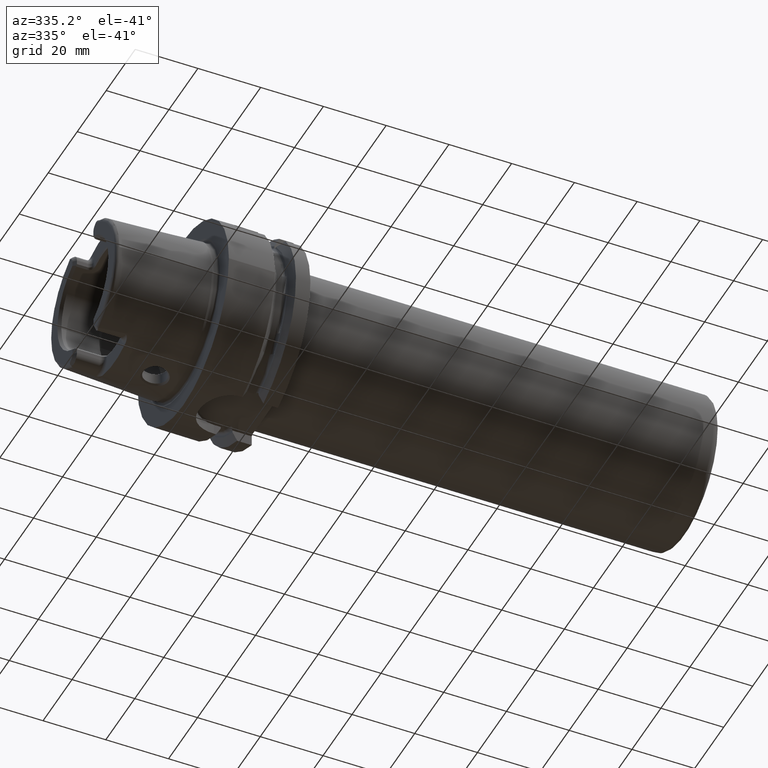
[diagram: clean part render]
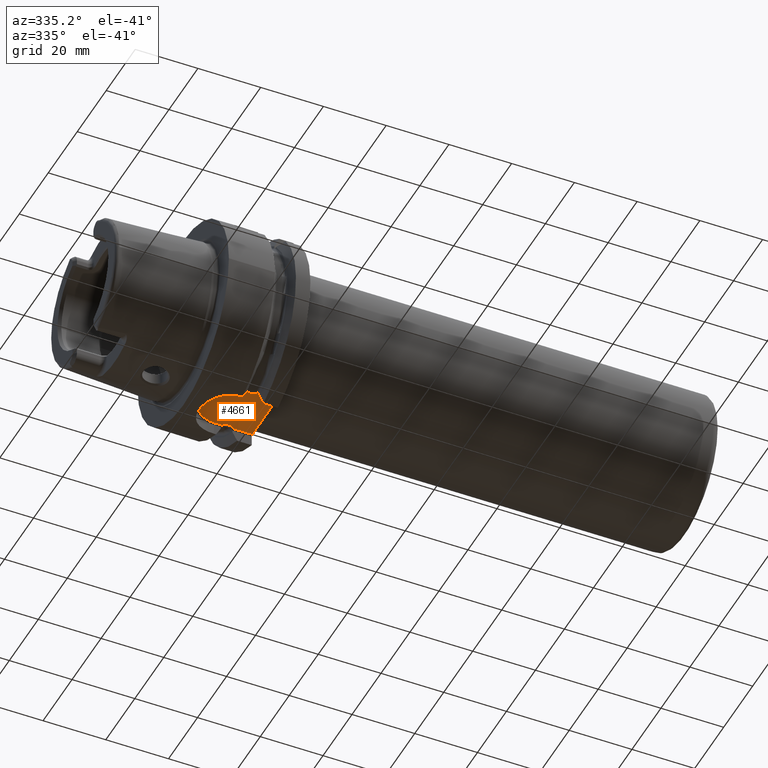
[diagram: same view with one face highlighted and labeled with its STEP entity id]
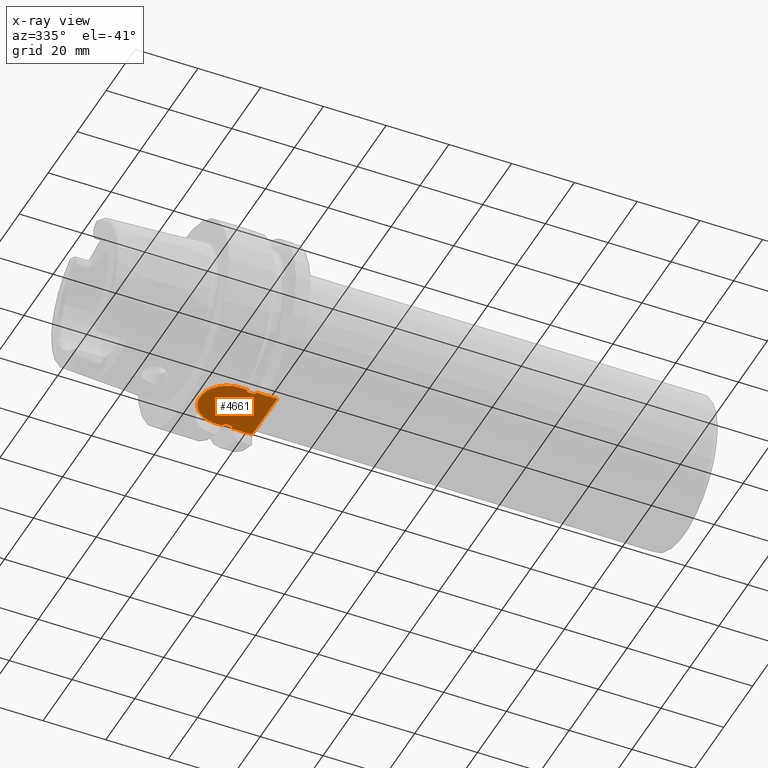
[diagram: x-ray of the same camera — body ghosted, the highlighted face saturated]
A machine part, auxiliary view. The second image highlights one B-rep face of the part: STEP entity #4661.
The next image is the same camera in x-ray: the body ghosted, the highlighted face saturated — about 0% of this face is hidden behind the body in this view.
In plain terms, the highlighted planar face has unit normal (0, 0, -1).
Its self-contained STEP definition (entity closure, byte-faithful):
#1222=CARTESIAN_POINT('',(1.7125E1,7.7E0,-2.64E1));
#1223=CARTESIAN_POINT('',(1.709612257646E1,7.7E0,-2.64E1));
#1224=CARTESIAN_POINT('',(1.703809054195E1,7.708549788548E0,-2.64E1));
#1225=CARTESIAN_POINT('',(1.694576354836E1,7.752741855764E0,-2.64E1));
#1226=CARTESIAN_POINT('',(1.686145167985E1,7.821144618954E0,-2.64E1));
#1227=CARTESIAN_POINT('',(1.678169591401E1,7.910255407197E0,-2.64E1));
#1228=CARTESIAN_POINT('',(1.670585865658E1,8.018731508895E0,-2.64E1));
#1229=CARTESIAN_POINT('',(1.663386002384E1,8.144595739092E0,-2.64E1));
#1230=CARTESIAN_POINT('',(1.656565613315E1,8.286316729889E0,-2.64E1));
#1231=CARTESIAN_POINT('',(1.650080228847E1,8.443935370899E0,-2.64E1));
#1232=CARTESIAN_POINT('',(1.646027482334E1,8.558057187343E0,-2.64E1));
#1233=CARTESIAN_POINT('',(1.644062313526E1,8.6175E0,-2.64E1));
#1296=CARTESIAN_POINT('',(1.644062313526E1,-8.6175E0,-2.64E1));
#1297=CARTESIAN_POINT('',(1.646078603879E1,-8.556510852770E0,-2.64E1));
#1298=CARTESIAN_POINT('',(1.650227386064E1,-8.439948273349E0,-2.64E1));
#1299=CARTESIAN_POINT('',(1.656805348335E1,-8.280864278287E0,-2.64E1));
#1300=CARTESIAN_POINT('',(1.663684500818E1,-8.138886080904E0,-2.64E1));
#1301=CARTESIAN_POINT('',(1.670898389576E1,-8.013810014671E0,-2.64E1));
#1302=CARTESIAN_POINT('',(1.678453793855E1,-7.906721865662E0,-2.64E1));
#1303=CARTESIAN_POINT('',(1.686362062870E1,-7.819127635624E0,-2.64E1));
#1304=CARTESIAN_POINT('',(1.694730615110E1,-7.751879650101E0,-2.64E1));
#1305=CARTESIAN_POINT('',(1.703817130297E1,-7.708637437381E0,-2.64E1));
#1306=CARTESIAN_POINT('',(1.709608612766E1,-7.7E0,-2.64E1));
#1307=CARTESIAN_POINT('',(1.7125E1,-7.7E0,-2.64E1));
#1341=CARTESIAN_POINT('',(1.955937686474E1,8.6175E0,-2.64E1));
#1347=CARTESIAN_POINT('',(1.955937686474E1,8.6175E0,-2.64E1));
#1348=CARTESIAN_POINT('',(1.953933692943E1,8.556882809475E0,-2.64E1));
#1349=CARTESIAN_POINT('',(1.949803643853E1,8.440751828791E0,-2.64E1));
#1350=CARTESIAN_POINT('',(1.943198239289E1,8.280902876688E0,-2.64E1));
#1351=CARTESIAN_POINT('',(1.936289962713E1,8.138372043109E0,-2.64E1));
#1352=CARTESIAN_POINT('',(1.929044179409E1,8.012872381152E0,-2.64E1));
#1353=CARTESIAN_POINT('',(1.921473346325E1,7.905832703978E0,-2.64E1));
#1354=CARTESIAN_POINT('',(1.913579091836E1,7.818493807110E0,-2.64E1));
#1355=CARTESIAN_POINT('',(1.905155273254E1,7.751296731883E0,-2.64E1));
#1356=CARTESIAN_POINT('',(1.896325315553E1,7.709235333598E0,-2.64E1));
#1357=CARTESIAN_POINT('',(1.890455004185E1,7.7E0,-2.64E1));
#1358=CARTESIAN_POINT('',(1.8875E1,7.7E0,-2.64E1));
#1418=CARTESIAN_POINT('',(1.8875E1,-7.7E0,-2.64E1));
#1419=CARTESIAN_POINT('',(1.890473731311E1,-7.7E0,-2.64E1));
#1420=CARTESIAN_POINT('',(1.896439553552E1,-7.709074097953E0,-2.64E1));
#1421=CARTESIAN_POINT('',(1.905895356645E1,-7.755593365771E0,-2.64E1));
#1422=CARTESIAN_POINT('',(1.914506350406E1,-7.827325160610E0,-2.64E1));
#1423=CARTESIAN_POINT('',(1.922569730521E1,-7.919730067314E0,-2.64E1));
#1424=CARTESIAN_POINT('',(1.930098420168E1,-8.029803274102E0,-2.64E1));
#1425=CARTESIAN_POINT('',(1.937115269578E1,-8.154449512708E0,-2.64E1));
#1426=CARTESIAN_POINT('',(1.943699388158E1,-8.292566470765E0,-2.64E1));
#1427=CARTESIAN_POINT('',(1.949974575456E1,-8.445548604297E0,-2.64E1));
#1428=CARTESIAN_POINT('',(1.953984256144E1,-8.558412255131E0,-2.64E1));
#1429=CARTESIAN_POINT('',(1.955937686474E1,-8.6175E0,-2.64E1));
#1461=DIRECTION('',(1.E0,0.E0,0.E0));
#1462=VECTOR('',#1461,6.440623135263E0);
#1463=CARTESIAN_POINT('',(1.955937686474E1,8.6175E0,-2.64E1));
#1464=LINE('',#1463,#1462);
#1465=DIRECTION('',(-9.999999999999E-1,-2.676307863714E-7,-2.675980536163E-7));
#1466=VECTOR('',#1465,2.473123130251E0);
#1467=CARTESIAN_POINT('',(1.644062313526E1,8.6175E0,-2.64E1));
#1468=LINE('',#1467,#1466);
#1469=CARTESIAN_POINT('',(1.39675E1,-2.131628207280E-14,-2.640000139113E1));
#1470=DIRECTION('',(0.E0,0.E0,1.E0));
#1471=DIRECTION('',(-1.030668622693E-14,1.E0,0.E0));
#1472=AXIS2_PLACEMENT_3D('',#1469,#1470,#1471);
#1474=DIRECTION('',(9.999999999999E-1,-2.676237429886E-7,2.676050896565E-7));
#1475=VECTOR('',#1474,2.473123130989E0);
#1476=CARTESIAN_POINT('',(1.396750000427E1,-8.617499338134E0,
-2.640000066182E1));
#1477=LINE('',#1476,#1475);
#1478=DIRECTION('',(-1.E0,0.E0,0.E0));
#1479=VECTOR('',#1478,6.440623135263E0);
#1480=CARTESIAN_POINT('',(2.6E1,-8.6175E0,-2.64E1));
#1481=LINE('',#1480,#1479);
#1482=CARTESIAN_POINT('',(2.6E1,2.300021454024E0,-2.639999683509E1));
#1483=CARTESIAN_POINT('',(2.6E1,1.789016761998E0,-2.639999683509E1));
#1484=CARTESIAN_POINT('',(2.600210659852E1,7.668981932987E-1,
-2.640000106056E1));
#1485=CARTESIAN_POINT('',(2.600210659850E1,-7.668982109026E-1,
-2.640000103539E1));
#1486=CARTESIAN_POINT('',(2.6E1,-1.789016726657E0,-2.639999687705E1));
#1487=CARTESIAN_POINT('',(2.6E1,-2.300021416499E0,-2.639999687705E1));
#1516=DIRECTION('',(0.E0,-9.999999999999E-1,5.009762629973E-7));
#1517=VECTOR('',#1516,6.317478545976E0);
#1518=CARTESIAN_POINT('',(2.6E1,8.6175E0,-2.64E1));
#1519=LINE('',#1518,#1517);
#1525=DIRECTION('',(0.E0,-9.999999999999E-1,-4.943343606929E-7));
#1526=VECTOR('',#1525,6.317478583502E0);
#1527=CARTESIAN_POINT('',(2.6E1,-2.300021416499E0,-2.639999687705E1));
#1528=LINE('',#1527,#1526);
#2047=CARTESIAN_POINT('',(1.644062313526E1,-8.6175E0,-2.64E1));
#2057=CARTESIAN_POINT('',(1.644062313526E1,8.6175E0,-2.64E1));
#2115=DIRECTION('',(1.E0,0.E0,0.E0));
#2116=VECTOR('',#2115,1.75E0);
#2117=CARTESIAN_POINT('',(1.7125E1,-7.7E0,-2.64E1));
#2118=LINE('',#2117,#2116);
#2128=DIRECTION('',(1.E0,0.E0,0.E0));
#2129=VECTOR('',#2128,1.75E0);
#2130=CARTESIAN_POINT('',(1.7125E1,7.7E0,-2.64E1));
#2131=LINE('',#2130,#2129);
#2950=VERTEX_POINT('',#2057);
#2953=VERTEX_POINT('',#2047);
#2955=VERTEX_POINT('',#1341);
#2956=CARTESIAN_POINT('',(2.6E1,8.6175E0,-2.64E1));
#2958=VERTEX_POINT('',#2956);
#2961=CARTESIAN_POINT('',(2.6E1,-8.6175E0,-2.64E1));
#2963=VERTEX_POINT('',#2961);
#2964=CARTESIAN_POINT('',(1.955937686474E1,-8.6175E0,-2.64E1));
#2965=VERTEX_POINT('',#2964);
#2968=CARTESIAN_POINT('',(1.396750000427E1,-8.617499338134E0,
-2.640000066182E1));
#2969=VERTEX_POINT('',#2968);
#2974=CARTESIAN_POINT('',(1.396750000501E1,8.617499338116E0,-2.640000066180E1));
#2975=VERTEX_POINT('',#2974);
#3042=CARTESIAN_POINT('',(1.7125E1,-7.7E0,-2.64E1));
#3043=CARTESIAN_POINT('',(1.8875E1,-7.7E0,-2.64E1));
#3044=VERTEX_POINT('',#3042);
#3045=VERTEX_POINT('',#3043);
#3046=CARTESIAN_POINT('',(1.7125E1,7.7E0,-2.64E1));
#3047=CARTESIAN_POINT('',(1.8875E1,7.7E0,-2.64E1));
#3048=VERTEX_POINT('',#3046);
#3049=VERTEX_POINT('',#3047);
#3122=CARTESIAN_POINT('',(2.6E1,-2.299957040099E0,-2.640000374268E1));
#3124=VERTEX_POINT('',#3122);
#3129=CARTESIAN_POINT('',(2.6E1,2.300021454024E0,-2.639999683509E1));
#3130=VERTEX_POINT('',#3129);
#4631=CARTESIAN_POINT('',(0.E0,0.E0,-2.64E1));
#4632=DIRECTION('',(0.E0,0.E0,-1.E0));
#4633=DIRECTION('',(1.E0,0.E0,0.E0));
#4634=AXIS2_PLACEMENT_3D('',#4631,#4632,#4633);
#4635=PLANE('',#4634);
#4637=ORIENTED_EDGE('',*,*,#4636,.F.);
#4639=ORIENTED_EDGE('',*,*,#4638,.F.);
#4640=ORIENTED_EDGE('',*,*,#4573,.F.);
#4641=ORIENTED_EDGE('',*,*,#4586,.T.);
#4643=ORIENTED_EDGE('',*,*,#4642,.F.);
#4644=ORIENTED_EDGE('',*,*,#4485,.T.);
#4646=ORIENTED_EDGE('',*,*,#4645,.T.);
#4648=ORIENTED_EDGE('',*,*,#4647,.T.);
#4650=ORIENTED_EDGE('',*,*,#4649,.T.);
#4651=ORIENTED_EDGE('',*,*,#4516,.T.);
#4653=ORIENTED_EDGE('',*,*,#4652,.T.);
#4654=ORIENTED_EDGE('',*,*,#4618,.T.);
#4656=ORIENTED_EDGE('',*,*,#4655,.F.);
#4658=ORIENTED_EDGE('',*,*,#4657,.F.);
#4659=EDGE_LOOP('',(#4637,#4639,#4640,#4641,#4643,#4644,#4646,#4648,#4650,#4651,
#4653,#4654,#4656,#4658));
#4660=FACE_OUTER_BOUND('',#4659,.F.);
#4661=ADVANCED_FACE('',(#4660),#4635,.T.);
#1234=B_SPLINE_CURVE_WITH_KNOTS('',3,(#1222,#1223,#1224,#1225,#1226,#1227,#1228,
#1229,#1230,#1231,#1232,#1233),.UNSPECIFIED.,.F.,.F.,(4,1,1,1,1,1,1,1,1,4),
(0.E0,1.111111111111E-1,2.222222222222E-1,3.333333333333E-1,4.444444444444E-1,
5.555555555556E-1,6.666666666667E-1,7.777777777778E-1,8.888888888889E-1,1.E0),
.UNSPECIFIED.);
#1308=B_SPLINE_CURVE_WITH_KNOTS('',3,(#1296,#1297,#1298,#1299,#1300,#1301,#1302,
#1303,#1304,#1305,#1306,#1307),.UNSPECIFIED.,.F.,.F.,(4,1,1,1,1,1,1,1,1,4),
(0.E0,1.111111111111E-1,2.222222222222E-1,3.333333333333E-1,4.444444444444E-1,
5.555555555556E-1,6.666666666667E-1,7.777777777778E-1,8.888888888889E-1,1.E0),
.UNSPECIFIED.);
#1359=B_SPLINE_CURVE_WITH_KNOTS('',3,(#1347,#1348,#1349,#1350,#1351,#1352,#1353,
#1354,#1355,#1356,#1357,#1358),.UNSPECIFIED.,.F.,.F.,(4,1,1,1,1,1,1,1,1,4),
(0.E0,1.111111111111E-1,2.222222222222E-1,3.333333333333E-1,4.444444444444E-1,
5.555555555556E-1,6.666666666667E-1,7.777777777778E-1,8.888888888889E-1,1.E0),
.UNSPECIFIED.);
#1430=B_SPLINE_CURVE_WITH_KNOTS('',3,(#1418,#1419,#1420,#1421,#1422,#1423,#1424,
#1425,#1426,#1427,#1428,#1429),.UNSPECIFIED.,.F.,.F.,(4,1,1,1,1,1,1,1,1,4),
(0.E0,1.111111111111E-1,2.222222222222E-1,3.333333333333E-1,4.444444444444E-1,
5.555555555556E-1,6.666666666667E-1,7.777777777778E-1,8.888888888889E-1,1.E0),
.UNSPECIFIED.);
#1473=CIRCLE('',#1472,8.617497420067E0);
#1488=B_SPLINE_CURVE_WITH_KNOTS('',3,(#1482,#1483,#1484,#1485,#1486,#1487),
.UNSPECIFIED.,.F.,.F.,(4,1,1,4),(0.E0,3.333333333333E-1,6.666666666667E-1,1.E0),
.UNSPECIFIED.);
#4485=EDGE_CURVE('',#3048,#2950,#1234,.T.);
#4516=EDGE_CURVE('',#2953,#3044,#1308,.T.);
#4573=EDGE_CURVE('',#2955,#2958,#1464,.T.);
#4586=EDGE_CURVE('',#2955,#3049,#1359,.T.);
#4618=EDGE_CURVE('',#3045,#2965,#1430,.T.);
#4636=EDGE_CURVE('',#3130,#3124,#1488,.T.);
#4638=EDGE_CURVE('',#2958,#3130,#1519,.T.);
#4642=EDGE_CURVE('',#3048,#3049,#2131,.T.);
#4645=EDGE_CURVE('',#2950,#2975,#1468,.T.);
#4647=EDGE_CURVE('',#2975,#2969,#1473,.T.);
#4649=EDGE_CURVE('',#2969,#2953,#1477,.T.);
#4652=EDGE_CURVE('',#3044,#3045,#2118,.T.);
#4655=EDGE_CURVE('',#2963,#2965,#1481,.T.);
#4657=EDGE_CURVE('',#3124,#2963,#1528,.T.);